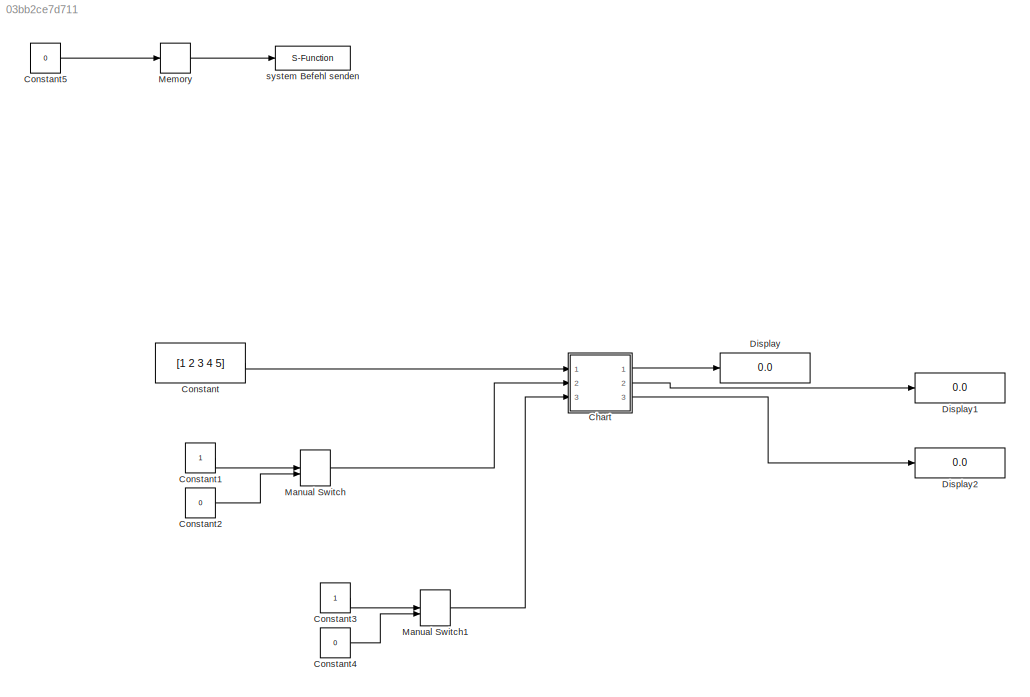
MODEL slx_03bb2ce7d711
KIND model
CONFIG AbsTol = auto
CONFIG EnableMultiTasking = on
CONFIG FixedStep = 0.01
CONFIG MaxStep = auto
CONFIG MinStep = auto
CONFIG RelTol = 1e-3
CONFIG SampleTimeConstraint = Unconstrained
CONFIG Solver = FixedStepDiscrete
CONFIG SolverName = FixedStepDiscrete
CONFIG StartTime = 0.0
CONFIG StopTime = inf
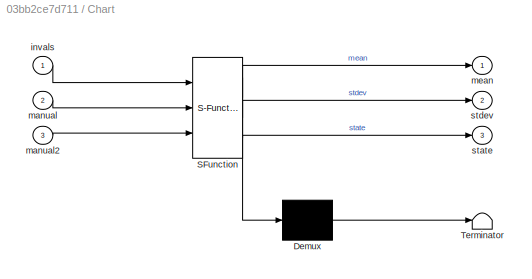
BLOCK [SubSystem] Chart
  ErrorFcn = Stateflow.Translate.translate
  PermitHierarchicalResolution = ExplicitOnly
  Ports = [3, 3]
  RequestExecContextInheritance = off
  SFBlockType = Chart
  TreatAsAtomicUnit = on
BLOCK [Demux] Chart/ Demux 
  Outputs = 1
  Ports = [1, 1]
BLOCK [S-Function] Chart/ SFunction 
  EnableBusSupport = on
  FunctionName = sf_sfun
  PortCounts = [3 4]
  Ports = [3, 4]
  SFcnIsStateOwnerBlock = off
  SFunctionDeploymentMode = off
  Tag = Stateflow S-Function 3
BLOCK [Terminator] Chart/ Terminator 
BLOCK [Inport] Chart/invals
BLOCK [Inport] Chart/manual
  Port = 2
BLOCK [Inport] Chart/manual2
  Port = 3
BLOCK [Outport] Chart/mean
  VectorParamsAs1DForOutWhenUnconnected = off
BLOCK [Outport] Chart/state
  Port = 3
  VectorParamsAs1DForOutWhenUnconnected = off
BLOCK [Outport] Chart/stdev
  Port = 2
  VectorParamsAs1DForOutWhenUnconnected = off
BLOCK [Constant] Constant
  Value = [1 2 3 4 5]
BLOCK [Constant] Constant1
BLOCK [Constant] Constant2
  Value = 0
BLOCK [Constant] Constant3
BLOCK [Constant] Constant4
  Value = 0
BLOCK [Constant] Constant5
  Commented = on
  Value = 0
BLOCK [Display] Display
  Decimation = 1
  Ports = [1]
BLOCK [Display] Display1
  Decimation = 1
  Ports = [1]
BLOCK [Display] Display2
  Decimation = 1
  Ports = [1]
BLOCK [ManualSwitch] Manual Switch
BLOCK [ManualSwitch] Manual Switch1
  CurrentSetting = 0
BLOCK [Memory] Memory
  Commented = on
  InitialCondition = 1
BLOCK [S-Function] system Befehl senden
  Commented = on
  EnableBusSupport = off
  FunctionName = system_send
  Parameters = folder,launchfile
  Ports = [1]
  SFcnIsStateOwnerBlock = off
  SFunctionDeploymentMode = off
LINE Chart:1 -> Display:1
LINE Chart:2 -> Display1:1
LINE Chart:3 -> Display2:1
LINE Constant1:1 -> Manual Switch:1
LINE Constant2:1 -> Manual Switch:2
LINE Constant3:1 -> Manual Switch1:1
LINE Constant4:1 -> Manual Switch1:2
LINE Constant5:1 -> Memory:1
LINE Constant:1 -> Chart:1
LINE Manual Switch1:1 -> Chart:3
LINE Manual Switch:1 -> Chart:2
LINE Memory:1 -> system Befehl senden:1
CHART Chart states=6 transitions=8
  STATE_LABEL 'OFF\nstate=0;'
  STATE_LABEL 'ON'
  STATE_LABEL 'a\n'
  STATE_LABEL 'meanout  = meanstats(vals)'
  STATE_LABEL "SCRIPT:\nfunction meanout  = meanstats(vals)\n%#codegen\n\n% Calculates the statistical mean for vals\n\nlen = length(vals);\nmeanout = avg(vals,len);\n\ncoder.extrinsic('plot');\nplot(vals,'-+');\n\n%system('mkdir neu');\n\nfunction mean = avg(array,size)\nmean = sum(array)/size;"
  STATE_LABEL 'stdevout = stdevstats(vals)'
  STATE_LABEL 'SCRIPT:\nfunction stdevout = stdevstats(vals)\n%#codegen\n\n% Calculates the standard deviation for vals\n\nlen = length(vals);\nstdevout = sqrt(sum(((vals-avg(vals,len)).^2))/len);\n\nfunction mean = avg(array,size)\nmean = sum(array)/size;'
  STATE_LABEL '{\nmean = meanstats(invals);\nstdev = stdevstats(invals);\n}'
  STATE_LABEL 'meanout  = meanstats(vals)'
  STATE_LABEL "SCRIPT:\nfunction meanout  = meanstats(vals)\n%#codegen\n\n% Calculates the statistical mean for vals\n\nlen = length(vals);\nmeanout = avg(vals,len);\n\ncoder.extrinsic('plot');\nplot(vals,'-+');\n\n%system('mkdir neu');\n\nfunction mean = avg(array,size)\nmean = sum(array)/size;"
  STATE_LABEL 'stdevout = stdevstats(vals)'
  STATE_LABEL 'SCRIPT:\nfunction stdevout = stdevstats(vals)\n%#codegen\n\n% Calculates the standard deviation for vals\n\nlen = length(vals);\nstdevout = sqrt(sum(((vals-avg(vals,len)).^2))/len);\n\nfunction mean = avg(array,size)\nmean = sum(array)/size;'
  STATE_LABEL 'a1\n'
CHART  states=0 transitions=0
